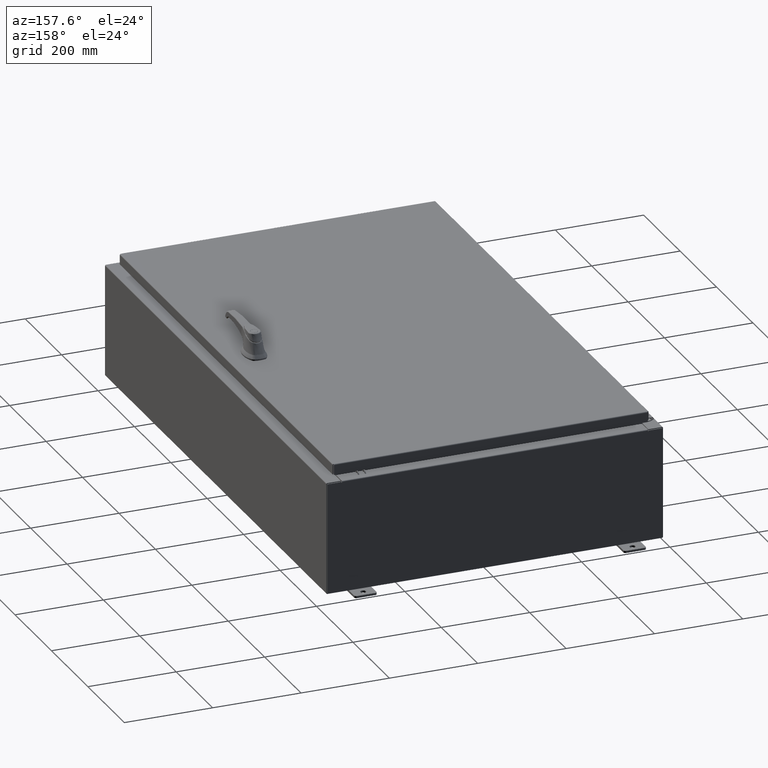
[diagram: clean part render]
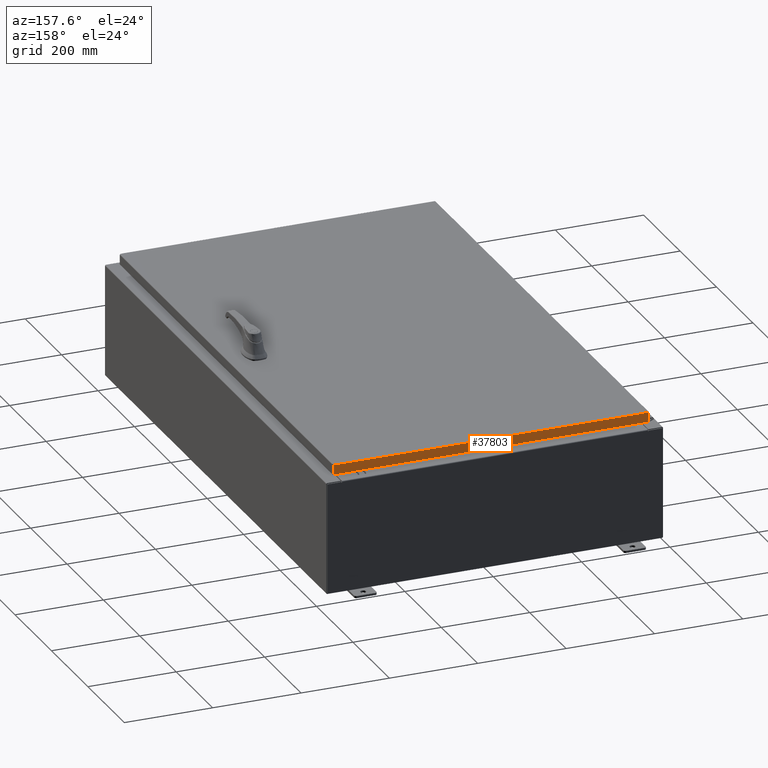
[diagram: same view with one face highlighted and labeled with its STEP entity id]
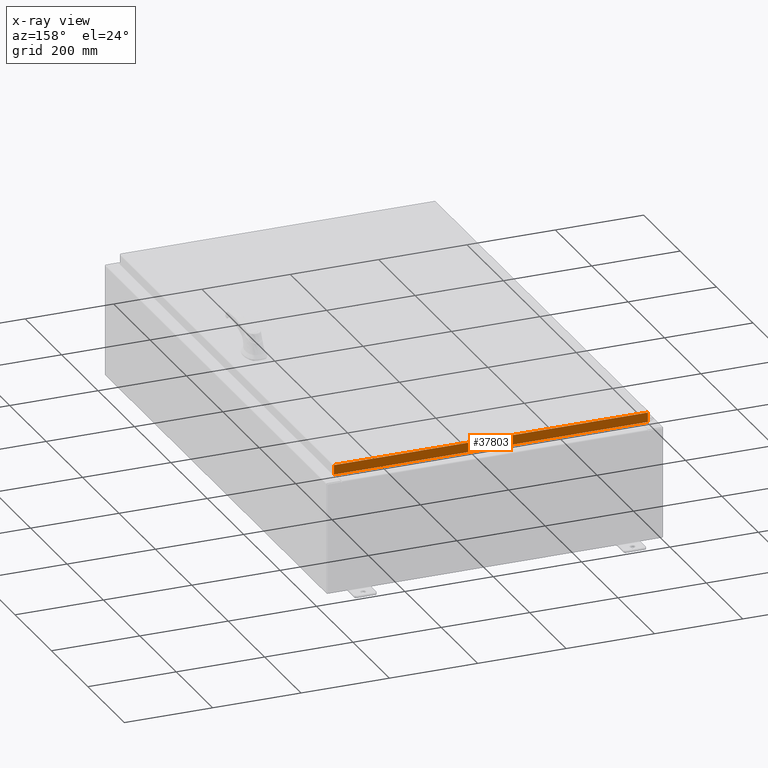
[diagram: x-ray of the same camera — body ghosted, the highlighted face saturated]
A machine part, auxiliary view. The second image highlights one B-rep face of the part: STEP entity #37803.
The next image is the same camera in x-ray: the body ghosted, the highlighted face saturated — about 0% of this face is hidden behind the body in this view.
In plain terms, the highlighted planar face has unit normal (0, -1, -0).
Its self-contained STEP definition (entity closure, byte-faithful):
#4994 = VERTEX_POINT ( 'NONE', #117159 ) ;
#8372 = DIRECTION ( 'NONE',  ( 6.388437403878876400E-031, -1.000000000000000000, -5.064839849203711700E-015 ) ) ;
#9528 = LINE ( 'NONE', #78271, #88196 ) ;
#15966 = ORIENTED_EDGE ( 'NONE', *, *, #84445, .F. ) ;
#18750 = CARTESIAN_POINT ( 'NONE',  ( -14.07799999999999800, 23.09400000000000500, -0.08769999999999550400 ) ) ;
#21049 = VECTOR ( 'NONE', #23593, 39.37007874015748100 ) ;
#23593 = DIRECTION ( 'NONE',  ( -0.0000000000000000000, 5.064839849203711700E-015, -1.000000000000000000 ) ) ;
#28144 = CARTESIAN_POINT ( 'NONE',  ( -1.475345734051788000E-029, 23.09400000000000500, 1.172282251335221200E-013 ) ) ;
#34360 = EDGE_LOOP ( 'NONE', ( #107720, #69285, #15966, #35829 ) ) ;
#35829 = ORIENTED_EDGE ( 'NONE', *, *, #117496, .F. ) ;
#37803 = ADVANCED_FACE ( 'NONE', ( #42061 ), #79252, .F. ) ;
#37932 = VERTEX_POINT ( 'NONE', #49660 ) ;
#42061 = FACE_OUTER_BOUND ( 'NONE', #34360, .T. ) ;
#43750 = LINE ( 'NONE', #18750, #46979 ) ;
#46979 = VECTOR ( 'NONE', #80194, 39.37007874015748100 ) ;
#48355 = LINE ( 'NONE', #74703, #21049 ) ;
#49660 = CARTESIAN_POINT ( 'NONE',  ( -13.98915786437626500, 23.09400000000000800, -0.9377000000000033100 ) ) ;
#54505 = VERTEX_POINT ( 'NONE', #75415 ) ;
#57661 = DIRECTION ( 'NONE',  ( 1.000000000000000000, -8.758115402030108600E-047, 1.261330583805776300E-016 ) ) ;
#62385 = VERTEX_POINT ( 'NONE', #116284 ) ;
#65840 = VECTOR ( 'NONE', #100160, 39.37007874015748100 ) ;
#69285 = ORIENTED_EDGE ( 'NONE', *, *, #78018, .T. ) ;
#73210 = AXIS2_PLACEMENT_3D ( 'NONE', #28144, #8372, #80114 ) ;
#74703 = CARTESIAN_POINT ( 'NONE',  ( -13.98915786437626500, 23.09400000000000500, -0.07469999999999962800 ) ) ;
#75415 = CARTESIAN_POINT ( 'NONE',  ( 13.98915786437626500, 23.09400000000000500, -0.08769999999999550400 ) ) ;
#76081 = EDGE_CURVE ( 'NONE', #54505, #4994, #43750, .T. ) ;
#78018 = EDGE_CURVE ( 'NONE', #54505, #62385, #93198, .T. ) ;
#78271 = CARTESIAN_POINT ( 'NONE',  ( -14.07799999999999800, 23.09400000000000800, -0.9377000000000033100 ) ) ;
#78998 = CARTESIAN_POINT ( 'NONE',  ( 13.98915786437626700, 23.09400000000000500, 1.172282251335221200E-013 ) ) ;
#79252 = PLANE ( 'NONE',  #73210 ) ;
#80114 = DIRECTION ( 'NONE',  ( 0.0000000000000000000, 5.064839849203711700E-015, -1.000000000000000000 ) ) ;
#80194 = DIRECTION ( 'NONE',  ( -1.000000000000000000, -6.388437403878877300E-031, -3.301709433785996900E-045 ) ) ;
#84445 = EDGE_CURVE ( 'NONE', #37932, #62385, #9528, .T. ) ;
#88196 = VECTOR ( 'NONE', #57661, 39.37007874015748100 ) ;
#93198 = LINE ( 'NONE', #78998, #65840 ) ;
#100160 = DIRECTION ( 'NONE',  ( 0.0000000000000000000, 5.064839849203711700E-015, -1.000000000000000000 ) ) ;
#107720 = ORIENTED_EDGE ( 'NONE', *, *, #76081, .F. ) ;
#116284 = CARTESIAN_POINT ( 'NONE',  ( 13.98915786437626500, 23.09400000000000800, -0.9376999999999997600 ) ) ;
#117159 = CARTESIAN_POINT ( 'NONE',  ( -13.98915786437626500, 23.09400000000000500, -0.08769999999999550400 ) ) ;
#117496 = EDGE_CURVE ( 'NONE', #4994, #37932, #48355, .T. ) ;